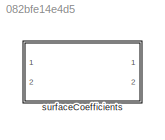
MODEL slx_082bfe14e4d5
KIND library
CONFIG AbsTol = auto
CONFIG EnableMultiTasking = off
CONFIG FixedStep = auto
CONFIG MaxStep = auto
CONFIG MinStep = auto
CONFIG RelTol = 1e-3
CONFIG SampleTimeConstraint = Unconstrained
CONFIG Solver = VariableStepAuto
CONFIG SolverName = VariableStepAuto
CONFIG StartTime = 0.0
CONFIG StopTime = 10.0
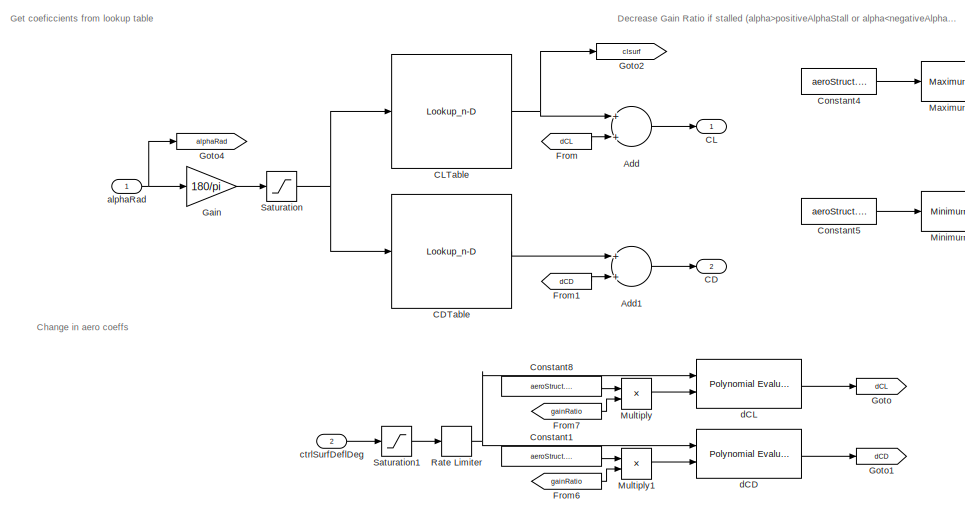
[diagram: surfaceCoefficients - part 1/2, left side, full height]
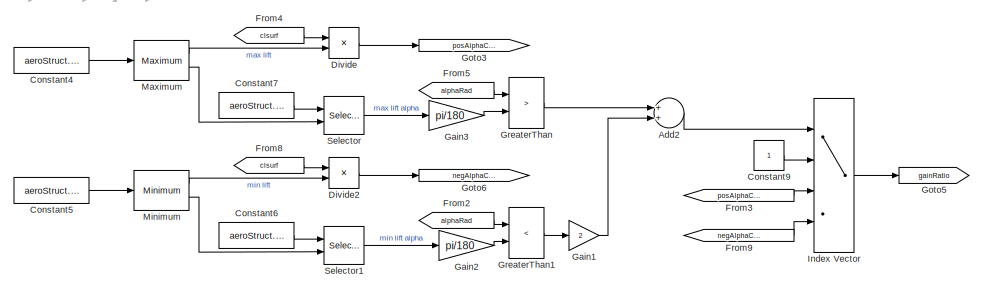
[diagram: surfaceCoefficients - part 2/2, middle right region]
BLOCK [SubSystem] surfaceCoefficients
  Ports = [2, 2]
  RequestExecContextInheritance = off
BLOCK [Sum] surfaceCoefficients/Add
  InputSameDT = off
  OutDataTypeStr = Inherit: Inherit via internal rule
  Ports = [2, 1]
  SaturateOnIntegerOverflow = off
BLOCK [Sum] surfaceCoefficients/Add1
  InputSameDT = off
  OutDataTypeStr = Inherit: Inherit via internal rule
  Ports = [2, 1]
  SaturateOnIntegerOverflow = off
BLOCK [Sum] surfaceCoefficients/Add2
  InputSameDT = off
  OutDataTypeStr = Inherit: Inherit via internal rule
  Ports = [2, 1]
  SaturateOnIntegerOverflow = off
BLOCK [Outport] surfaceCoefficients/CD
  IconDisplay = Port number
  Port = 2
BLOCK [Lookup_n-D] surfaceCoefficients/CDTable
  BreakpointsForDimension1 = aeroStruct.alpha
  ExtrapMethod = Clip
  InternalRulePriority = Speed
  LookupTableObject = CLTable
  NumberOfTableDimensions = 1
  Ports = [1, 1]
  RndMeth = Simplest
  Table = aeroStruct.CD
  UseLastTableValue = on
BLOCK [Outport] surfaceCoefficients/CL
  IconDisplay = Port number
BLOCK [Lookup_n-D] surfaceCoefficients/CLTable
  BreakpointsForDimension1 = aeroStruct.alpha
  ExtrapMethod = Clip
  InternalRulePriority = Speed
  LookupTableObject = CLTable
  NumberOfTableDimensions = 1
  Ports = [1, 1]
  RndMeth = Simplest
  Table = aeroStruct.CL
  UseLastTableValue = on
BLOCK [Constant] surfaceCoefficients/Constant1
  Value = aeroStruct.gainCD
BLOCK [Constant] surfaceCoefficients/Constant4
  Value = aeroStruct.CL
BLOCK [Constant] surfaceCoefficients/Constant5
  Value = aeroStruct.CL
BLOCK [Constant] surfaceCoefficients/Constant6
  Value = aeroStruct.alpha
BLOCK [Constant] surfaceCoefficients/Constant7
  Value = aeroStruct.alpha
BLOCK [Constant] surfaceCoefficients/Constant8
  Value = aeroStruct.gainCL
BLOCK [Constant] surfaceCoefficients/Constant9
BLOCK [Product] surfaceCoefficients/Divide
  InputSameDT = off
  Inputs = */
  OutDataTypeStr = Inherit: Inherit via internal rule
  Ports = [2, 1]
  RndMeth = Floor
  SaturateOnIntegerOverflow = off
BLOCK [Product] surfaceCoefficients/Divide2
  InputSameDT = off
  Inputs = */
  OutDataTypeStr = Inherit: Inherit via internal rule
  Ports = [2, 1]
  RndMeth = Floor
  SaturateOnIntegerOverflow = off
BLOCK [From] surfaceCoefficients/From
  GotoTag = dCL
BLOCK [From] surfaceCoefficients/From1
  GotoTag = dCD
BLOCK [From] surfaceCoefficients/From2
  GotoTag = alphaRad
BLOCK [From] surfaceCoefficients/From3
  GotoTag = posAlphaCLRatio
BLOCK [From] surfaceCoefficients/From4
  GotoTag = clsurf
BLOCK [From] surfaceCoefficients/From5
  GotoTag = alphaRad
BLOCK [From] surfaceCoefficients/From6
  GotoTag = gainRatio
BLOCK [From] surfaceCoefficients/From7
  GotoTag = gainRatio
BLOCK [From] surfaceCoefficients/From8
  GotoTag = clsurf
BLOCK [From] surfaceCoefficients/From9
  GotoTag = negAlphaCLRatio
BLOCK [Gain] surfaceCoefficients/Gain
  Gain = 180/pi
  OutDataTypeStr = Inherit: Inherit via internal rule
  ParamDataTypeStr = Inherit: Inherit via internal rule
  SaturateOnIntegerOverflow = off
BLOCK [Gain] surfaceCoefficients/Gain1
  Gain = 2
  OutDataTypeStr = Inherit: Inherit via internal rule
  ParamDataTypeStr = Inherit: Inherit via internal rule
  SaturateOnIntegerOverflow = off
BLOCK [Gain] surfaceCoefficients/Gain2
  Gain = pi/180
  OutDataTypeStr = Inherit: Inherit via internal rule
  ParamDataTypeStr = Inherit: Inherit via internal rule
  SaturateOnIntegerOverflow = off
BLOCK [Gain] surfaceCoefficients/Gain3
  Gain = pi/180
  OutDataTypeStr = Inherit: Inherit via internal rule
  ParamDataTypeStr = Inherit: Inherit via internal rule
  SaturateOnIntegerOverflow = off
BLOCK [Goto] surfaceCoefficients/Goto
  GotoTag = dCL
BLOCK [Goto] surfaceCoefficients/Goto1
  GotoTag = dCD
BLOCK [Goto] surfaceCoefficients/Goto2
  GotoTag = clsurf
BLOCK [Goto] surfaceCoefficients/Goto3
  GotoTag = posAlphaCLRatio
BLOCK [Goto] surfaceCoefficients/Goto4
  GotoTag = alphaRad
BLOCK [Goto] surfaceCoefficients/Goto5
  GotoTag = gainRatio
BLOCK [Goto] surfaceCoefficients/Goto6
  GotoTag = negAlphaCLRatio
BLOCK [RelationalOperator] surfaceCoefficients/GreaterThan
  InputSameDT = off
  Operator = >
  OutDataTypeStr = boolean
  Ports = [2, 1]
  RndMeth = Simplest
BLOCK [RelationalOperator] surfaceCoefficients/GreaterThan1
  InputSameDT = off
  Operator = <
  OutDataTypeStr = boolean
  Ports = [2, 1]
  RndMeth = Simplest
BLOCK [MultiPortSwitch] surfaceCoefficients/Index Vector
  DataPortOrder = Zero-based contiguous
  InputSameDT = off
  Ports = [4, 1]
  SaturateOnIntegerOverflow = off
  zeroidx = on
BLOCK [Reference] surfaceCoefficients/Maximum  REF=dspstat3/Maximum
  Ports = [1, 2]
  SourceBlock = dspstat3/Maximum
  SourceProductBaseCode = DS
  SourceProductName = DSP System Toolbox
  SourceType = Maximum
  UserDataPersistent = on
BLOCK [Reference] surfaceCoefficients/Minimum  REF=dspstat3/Minimum
  Ports = [1, 2]
  SourceBlock = dspstat3/Minimum
  SourceProductBaseCode = DS
  SourceProductName = DSP System Toolbox
  SourceType = Minimum
  UserDataPersistent = on
BLOCK [Product] surfaceCoefficients/Multiply
  InputSameDT = off
  OutDataTypeStr = Inherit: Inherit via internal rule
  Ports = [2, 1]
  RndMeth = Floor
  SaturateOnIntegerOverflow = off
BLOCK [Product] surfaceCoefficients/Multiply1
  InputSameDT = off
  OutDataTypeStr = Inherit: Inherit via internal rule
  Ports = [2, 1]
  RndMeth = Floor
  SaturateOnIntegerOverflow = off
BLOCK [RateLimiter] surfaceCoefficients/Rate Limiter
  FallingSlewLimit = -aeroStruct.maxCtrlDefSpeed
  RisingSlewLimit = aeroStruct.maxCtrlDefSpeed
  SampleTimeMode = inherited
BLOCK [Saturate] surfaceCoefficients/Saturation
  InputPortMap = u0
  LowerLimit = -90
  Ports = [1, 1]
  UpperLimit = 90
BLOCK [Saturate] surfaceCoefficients/Saturation1
  InputPortMap = u0
  LowerLimit = aeroStruct.minCtrlDef
  Ports = [1, 1]
  UpperLimit = aeroStruct.maxCtrlDef
BLOCK [Selector] surfaceCoefficients/Selector
  IndexOptions = Index vector (port)
  Indices = [1 3]
  InputPortWidth = length(vhcl.portWing.alpha.Value)
  OutputSizes = 1
  Ports = [2, 1]
BLOCK [Selector] surfaceCoefficients/Selector1
  IndexOptions = Index vector (port)
  Indices = [1 3]
  InputPortWidth = length(vhcl.portWing.alpha.Value)
  OutputSizes = 1
  Ports = [2, 1]
BLOCK [Inport] surfaceCoefficients/alphaRad
  IconDisplay = Port number
BLOCK [Inport] surfaceCoefficients/ctrlSurfDeflDeg
  IconDisplay = Port number
  Port = 2
BLOCK [Reference] surfaceCoefficients/dCD  REF=dsppolyfun/Polynomial
Evaluation
  Ports = [2, 1]
  SourceBlock = dsppolyfun/Polynomial\nEvaluation
  SourceProductBaseCode = DS
  SourceProductName = DSP System Toolbox
  SourceType = Polynomial Evaluation
BLOCK [Reference] surfaceCoefficients/dCL  REF=dsppolyfun/Polynomial
Evaluation
  Ports = [2, 1]
  SourceBlock = dsppolyfun/Polynomial\nEvaluation
  SourceProductBaseCode = DS
  SourceProductName = DSP System Toolbox
  SourceType = Polynomial Evaluation
ANNOTATION surfaceCoefficients: Change in aero coeffs
ANNOTATION surfaceCoefficients: Decrease Gain Ratio if stalled (alpha>positiveAlphaStall or alpha<negativeAlphaStall)
ANNOTATION surfaceCoefficients: Get coeficcients from lookup table
LINE surfaceCoefficients/Add1:1 -> surfaceCoefficients/CD:1
LINE surfaceCoefficients/Add2:1 -> surfaceCoefficients/Index Vector:1
LINE surfaceCoefficients/Add:1 -> surfaceCoefficients/CL:1
LINE surfaceCoefficients/CDTable:1 -> surfaceCoefficients/Add1:1
NET surfaceCoefficients/CLTable:1 -> surfaceCoefficients/Add:1, surfaceCoefficients/Goto2:1
LINE surfaceCoefficients/Constant1:1 -> surfaceCoefficients/Multiply1:1
LINE surfaceCoefficients/Constant4:1 -> surfaceCoefficients/Maximum:1
LINE surfaceCoefficients/Constant5:1 -> surfaceCoefficients/Minimum:1
LINE surfaceCoefficients/Constant6:1 -> surfaceCoefficients/Selector1:1
LINE surfaceCoefficients/Constant7:1 -> surfaceCoefficients/Selector:1
LINE surfaceCoefficients/Constant8:1 -> surfaceCoefficients/Multiply:1
LINE surfaceCoefficients/Constant9:1 -> surfaceCoefficients/Index Vector:2
LINE surfaceCoefficients/Divide2:1 -> surfaceCoefficients/Goto6:1
LINE surfaceCoefficients/Divide:1 -> surfaceCoefficients/Goto3:1
LINE surfaceCoefficients/From1:1 -> surfaceCoefficients/Add1:2
LINE surfaceCoefficients/From2:1 -> surfaceCoefficients/GreaterThan1:1
LINE surfaceCoefficients/From3:1 -> surfaceCoefficients/Index Vector:3
LINE surfaceCoefficients/From4:1 -> surfaceCoefficients/Divide:1
LINE surfaceCoefficients/From5:1 -> surfaceCoefficients/GreaterThan:1
LINE surfaceCoefficients/From6:1 -> surfaceCoefficients/Multiply1:2
LINE surfaceCoefficients/From7:1 -> surfaceCoefficients/Multiply:2
LINE surfaceCoefficients/From8:1 -> surfaceCoefficients/Divide2:1
LINE surfaceCoefficients/From9:1 -> surfaceCoefficients/Index Vector:4
LINE surfaceCoefficients/From:1 -> surfaceCoefficients/Add:2
LINE surfaceCoefficients/Gain1:1 -> surfaceCoefficients/Add2:2
LINE surfaceCoefficients/Gain2:1 -> surfaceCoefficients/GreaterThan1:2
LINE surfaceCoefficients/Gain3:1 -> surfaceCoefficients/GreaterThan:2
LINE surfaceCoefficients/Gain:1 -> surfaceCoefficients/Saturation:1
LINE surfaceCoefficients/GreaterThan1:1 -> surfaceCoefficients/Gain1:1
LINE surfaceCoefficients/GreaterThan:1 -> surfaceCoefficients/Add2:1
LINE surfaceCoefficients/Index Vector:1 -> surfaceCoefficients/Goto5:1
LINE surfaceCoefficients/Maximum:1 -> surfaceCoefficients/Divide:2
LINE surfaceCoefficients/Maximum:2 -> surfaceCoefficients/Selector:2
LINE surfaceCoefficients/Minimum:1 -> surfaceCoefficients/Divide2:2
LINE surfaceCoefficients/Minimum:2 -> surfaceCoefficients/Selector1:2
LINE surfaceCoefficients/Multiply1:1 -> surfaceCoefficients/dCD:2
LINE surfaceCoefficients/Multiply:1 -> surfaceCoefficients/dCL:2
NET surfaceCoefficients/Rate Limiter:1 -> surfaceCoefficients/dCD:1, surfaceCoefficients/dCL:1
LINE surfaceCoefficients/Saturation1:1 -> surfaceCoefficients/Rate Limiter:1
NET surfaceCoefficients/Saturation:1 -> surfaceCoefficients/CDTable:1, surfaceCoefficients/CLTable:1
LINE surfaceCoefficients/Selector1:1 -> surfaceCoefficients/Gain2:1
LINE surfaceCoefficients/Selector:1 -> surfaceCoefficients/Gain3:1
NET surfaceCoefficients/alphaRad:1 -> surfaceCoefficients/Gain:1, surfaceCoefficients/Goto4:1
LINE surfaceCoefficients/ctrlSurfDeflDeg:1 -> surfaceCoefficients/Saturation1:1
LINE surfaceCoefficients/dCD:1 -> surfaceCoefficients/Goto1:1
LINE surfaceCoefficients/dCL:1 -> surfaceCoefficients/Goto:1
note: NET lines group one-source signal fan-out (src -> all destinations, sorted); 1:1 wires keep LINE
